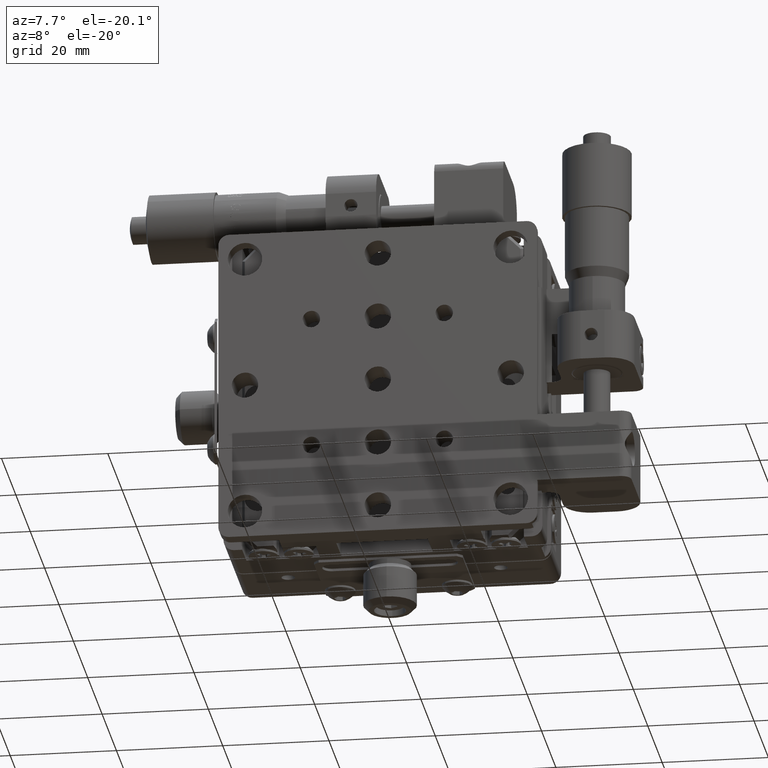
[diagram: clean part render]
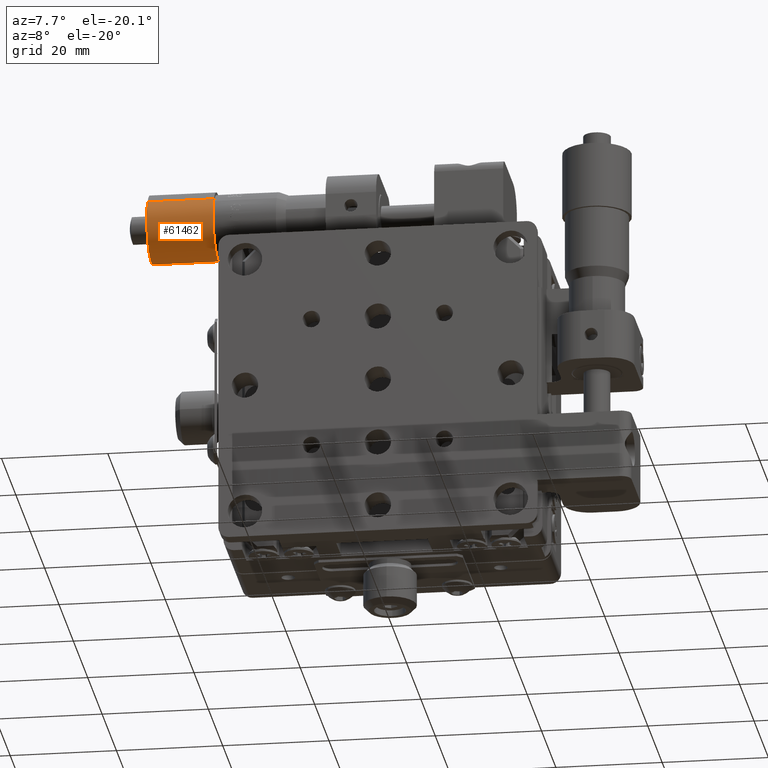
[diagram: same view with one face highlighted and labeled with its STEP entity id]
A machine part, auxiliary view. The second image highlights one B-rep face of the part: STEP entity #61462.
In plain terms, the highlighted cylindrical surface (edge-blend (fillet) strip) has radius 6.5 mm, axis along (-1, 0, 0).
Its self-contained STEP definition (entity closure, byte-faithful):
#976 = ORIENTED_EDGE ( 'NONE', *, *, #18613, .T. ) ;
#1250 = CARTESIAN_POINT ( 'NONE',  ( -45.64999999999999900, 22.60000000000006200, 39.99999999999995000 ) ) ;
#6912 = DIRECTION ( 'NONE',  ( 0.0000000000000000000, 0.8245680416773647500, -0.5657627989222652200 ) ) ;
#8938 = CARTESIAN_POINT ( 'NONE',  ( -45.64999999999999900, 27.95969227090294900, 36.32254180700522300 ) ) ;
#10100 = EDGE_LOOP ( 'NONE', ( #32045, #976, #53715, #68920 ) ) ;
#10639 = CARTESIAN_POINT ( 'NONE',  ( -45.64999999999999900, 17.24030772909718200, 43.67745819299467800 ) ) ;
#12762 = LINE ( 'NONE', #49579, #70510 ) ;
#12995 = FACE_OUTER_BOUND ( 'NONE', #10100, .T. ) ;
#17272 = CIRCLE ( 'NONE', #43842, 6.500000000000015100 ) ;
#18613 = EDGE_CURVE ( 'NONE', #59593, #35597, #12762, .T. ) ;
#20246 = DIRECTION ( 'NONE',  ( -1.000000000000000000, 3.932797404356772800E-016, 5.778646193865678000E-017 ) ) ;
#25314 = DIRECTION ( 'NONE',  ( -1.000000000000000000, 3.932797404356772800E-016, 5.778646193865678000E-017 ) ) ;
#26104 = DIRECTION ( 'NONE',  ( 0.0000000000000000000, 0.8245680416773647500, -0.5657627989222652200 ) ) ;
#27306 = DIRECTION ( 'NONE',  ( -1.000000000000000000, 3.932797404356772800E-016, 5.778646193865678000E-017 ) ) ;
#31877 = EDGE_CURVE ( 'NONE', #58785, #35597, #17272, .T. ) ;
#31888 = DIRECTION ( 'NONE',  ( -1.000000000000000000, 3.932797404356772800E-016, 5.778646193865678000E-017 ) ) ;
#32045 = ORIENTED_EDGE ( 'NONE', *, *, #35424, .T. ) ;
#35424 = EDGE_CURVE ( 'NONE', #62872, #59593, #46781, .T. ) ;
#35597 = VERTEX_POINT ( 'NONE', #10639 ) ;
#37676 = EDGE_CURVE ( 'NONE', #62872, #58785, #50060, .T. ) ;
#40092 = CARTESIAN_POINT ( 'NONE',  ( -33.14999999999998400, 27.95969227090290900, 36.32254180700527300 ) ) ;
#40409 = DIRECTION ( 'NONE',  ( -1.000000000000000000, 3.932797404356772800E-016, 5.778646193865678000E-017 ) ) ;
#42493 = CARTESIAN_POINT ( 'NONE',  ( -62.19102306920762400, 22.60000000000004800, 40.00000000000000000 ) ) ;
#43842 = AXIS2_PLACEMENT_3D ( 'NONE', #1250, #40409, #6912 ) ;
#44337 = CARTESIAN_POINT ( 'NONE',  ( -33.14999999999998400, 17.24030772909715700, 43.67745819299473500 ) ) ;
#46781 = CIRCLE ( 'NONE', #70612, 6.500000000000015100 ) ;
#49579 = CARTESIAN_POINT ( 'NONE',  ( -62.19102306920762400, 17.24030772909716400, 43.67745819299473500 ) ) ;
#50060 = LINE ( 'NONE', #59764, #63206 ) ;
#53715 = ORIENTED_EDGE ( 'NONE', *, *, #31877, .F. ) ;
#58785 = VERTEX_POINT ( 'NONE', #8938 ) ;
#58819 = CARTESIAN_POINT ( 'NONE',  ( -33.14999999999998400, 22.60000000000002600, 40.00000000000000700 ) ) ;
#59593 = VERTEX_POINT ( 'NONE', #44337 ) ;
#59764 = CARTESIAN_POINT ( 'NONE',  ( -62.19102306920762400, 27.95969227090293100, 36.32254180700526500 ) ) ;
#61462 = ADVANCED_FACE ( 'NONE', ( #12995 ), #65504, .T. ) ;
#62872 = VERTEX_POINT ( 'NONE', #40092 ) ;
#63206 = VECTOR ( 'NONE', #31888, 1000.000000000000000 ) ;
#63413 = AXIS2_PLACEMENT_3D ( 'NONE', #42493, #20246, #26104 ) ;
#64463 = DIRECTION ( 'NONE',  ( 0.0000000000000000000, 0.8245680416773647500, -0.5657627989222652200 ) ) ;
#65504 = CYLINDRICAL_SURFACE ( 'NONE', #63413, 6.500000000000015100 ) ;
#68920 = ORIENTED_EDGE ( 'NONE', *, *, #37676, .F. ) ;
#70510 = VECTOR ( 'NONE', #27306, 1000.000000000000000 ) ;
#70612 = AXIS2_PLACEMENT_3D ( 'NONE', #58819, #25314, #64463 ) ;